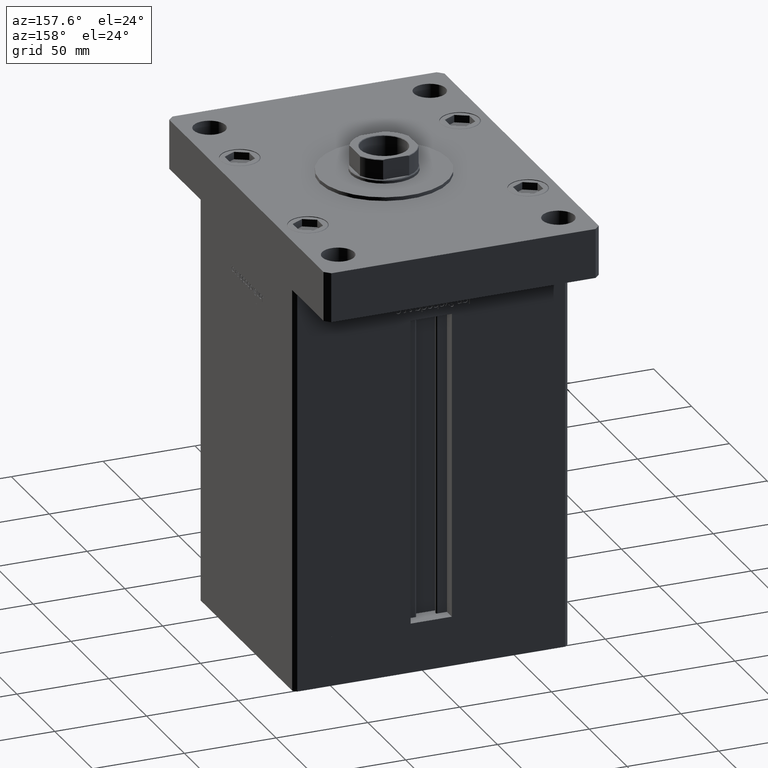
[diagram: clean part render]
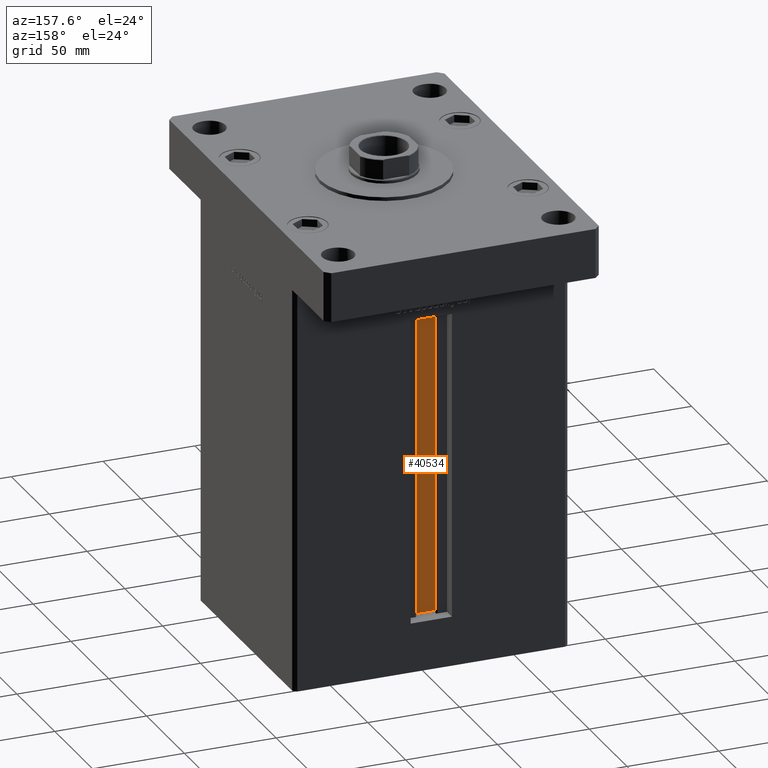
[diagram: same view with one face highlighted and labeled with its STEP entity id]
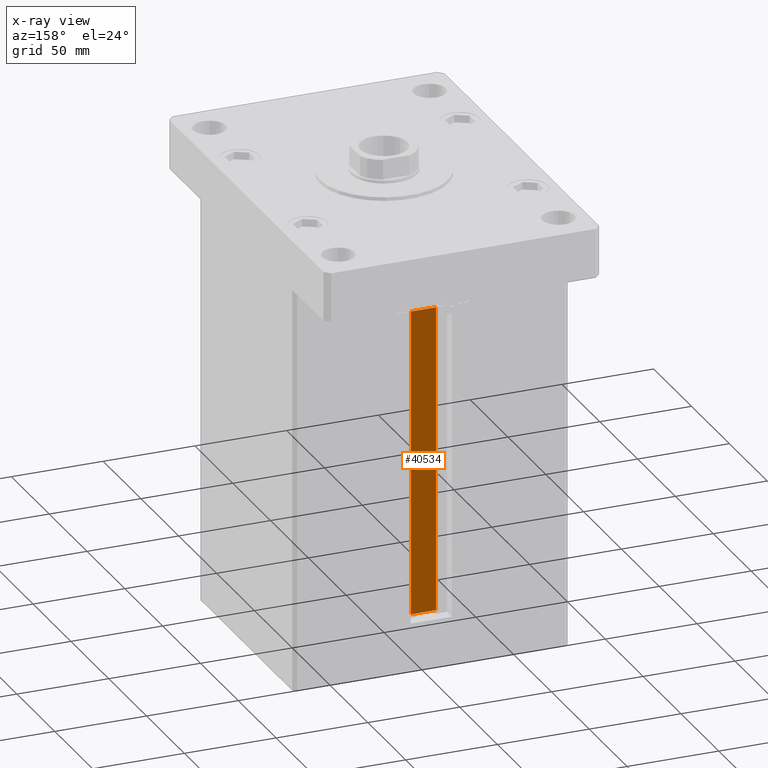
[diagram: x-ray of the same camera — body ghosted, the highlighted face saturated]
A machine part, auxiliary view. The second image highlights one B-rep face of the part: STEP entity #40534.
The next image is the same camera in x-ray: the body ghosted, the highlighted face saturated — about 0% of this face is hidden behind the body in this view.
In plain terms, the highlighted planar face has unit normal (0, -1, 0).
Its self-contained STEP definition (entity closure, byte-faithful):
#1132 = VERTEX_POINT ( 'NONE', #3285 ) ;
#3285 = CARTESIAN_POINT ( 'NONE',  ( 6.876153656360466826, 51.99999999999986500, 166.9999999999999432 ) ) ;
#4303 = ORIENTED_EDGE ( 'NONE', *, *, #8680, .F. ) ;
#6618 = VERTEX_POINT ( 'NONE', #36502 ) ;
#8680 = EDGE_CURVE ( 'NONE', #1132, #6618, #44971, .T. ) ;
#8715 = AXIS2_PLACEMENT_3D ( 'NONE', #45135, #32233, #12052 ) ;
#10855 = ORIENTED_EDGE ( 'NONE', *, *, #39103, .F. ) ;
#12052 = DIRECTION ( 'NONE',  ( 0.000000000000000000, 0.000000000000000000, -1.000000000000000000 ) ) ;
#14779 = EDGE_LOOP ( 'NONE', ( #10855, #45831, #23833, #4303 ) ) ;
#15646 = CARTESIAN_POINT ( 'NONE',  ( 0.000000000000000000, 51.99999999999986500, 167.0000000000000000 ) ) ;
#15850 = DIRECTION ( 'NONE',  ( -0.000000000000000000, -0.000000000000000000, 1.000000000000000000 ) ) ;
#18213 = VECTOR ( 'NONE', #33836, 1000.000000000000000 ) ;
#20479 = CARTESIAN_POINT ( 'NONE',  ( -6.876153656360466826, 51.99999999999986500, 0.000000000000000000 ) ) ;
#23833 = ORIENTED_EDGE ( 'NONE', *, *, #28239, .T. ) ;
#23865 = VERTEX_POINT ( 'NONE', #23991 ) ;
#23991 = CARTESIAN_POINT ( 'NONE',  ( 6.876153656360466826, 51.99999999999986500, 0.000000000000000000 ) ) ;
#24943 = PLANE ( 'NONE',  #8715 ) ;
#28239 = EDGE_CURVE ( 'NONE', #43098, #6618, #44360, .T. ) ;
#30681 = CARTESIAN_POINT ( 'NONE',  ( 6.876153656360466826, 51.99999999999986500, 0.000000000000000000 ) ) ;
#31483 = LINE ( 'NONE', #30681, #46671 ) ;
#32233 = DIRECTION ( 'NONE',  ( 0.000000000000000000, -1.000000000000000000, -0.000000000000000000 ) ) ;
#32267 = VECTOR ( 'NONE', #15850, 1000.000000000000000 ) ;
#32495 = FACE_OUTER_BOUND ( 'NONE', #14779, .T. ) ;
#32791 = CARTESIAN_POINT ( 'NONE',  ( -6.876153656360466826, 51.99999999999986500, 0.000000000000000000 ) ) ;
#32840 = CARTESIAN_POINT ( 'NONE',  ( 6.876153656360466826, 51.99999999999986500, 0.000000000000000000 ) ) ;
#33836 = DIRECTION ( 'NONE',  ( -1.000000000000000000, 0.000000000000000000, 0.000000000000000000 ) ) ;
#34722 = DIRECTION ( 'NONE',  ( -0.000000000000000000, -0.000000000000000000, 1.000000000000000000 ) ) ;
#36502 = CARTESIAN_POINT ( 'NONE',  ( -6.876153656360466826, 51.99999999999986500, 166.9999999999999432 ) ) ;
#39103 = EDGE_CURVE ( 'NONE', #23865, #1132, #31483, .T. ) ;
#40534 = ADVANCED_FACE ( 'NONE', ( #32495 ), #24943, .F. ) ;
#40915 = LINE ( 'NONE', #32840, #45465 ) ;
#43098 = VERTEX_POINT ( 'NONE', #20479 ) ;
#44360 = LINE ( 'NONE', #32791, #32267 ) ;
#44971 = LINE ( 'NONE', #15646, #18213 ) ;
#45135 = CARTESIAN_POINT ( 'NONE',  ( 6.876153656360466826, 51.99999999999986500, 0.000000000000000000 ) ) ;
#45465 = VECTOR ( 'NONE', #49258, 1000.000000000000000 ) ;
#45491 = EDGE_CURVE ( 'NONE', #43098, #23865, #40915, .T. ) ;
#45831 = ORIENTED_EDGE ( 'NONE', *, *, #45491, .F. ) ;
#46671 = VECTOR ( 'NONE', #34722, 1000.000000000000000 ) ;
#49258 = DIRECTION ( 'NONE',  ( 1.000000000000000000, -0.000000000000000000, -0.000000000000000000 ) ) ;